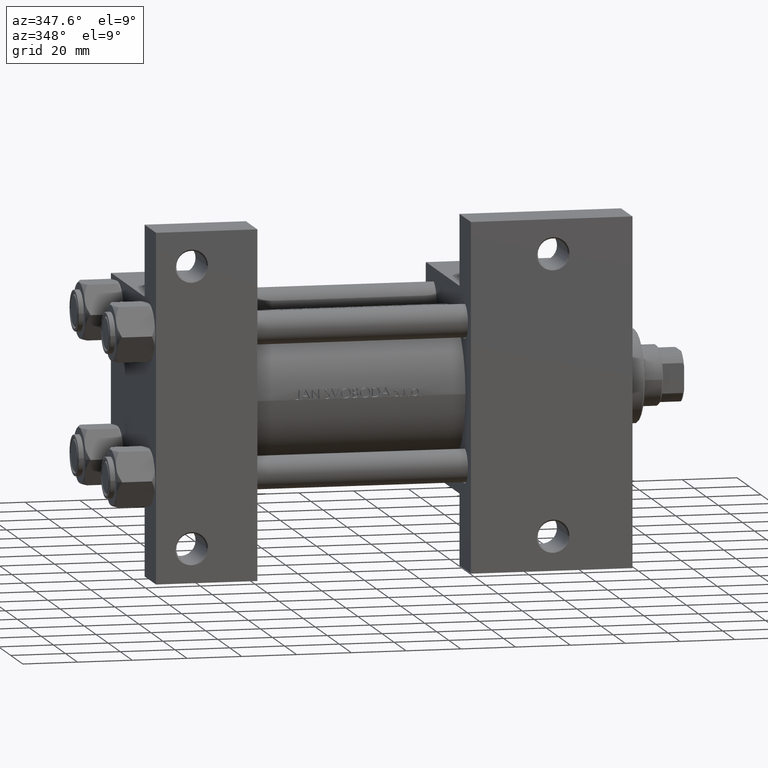
[diagram: clean part render]
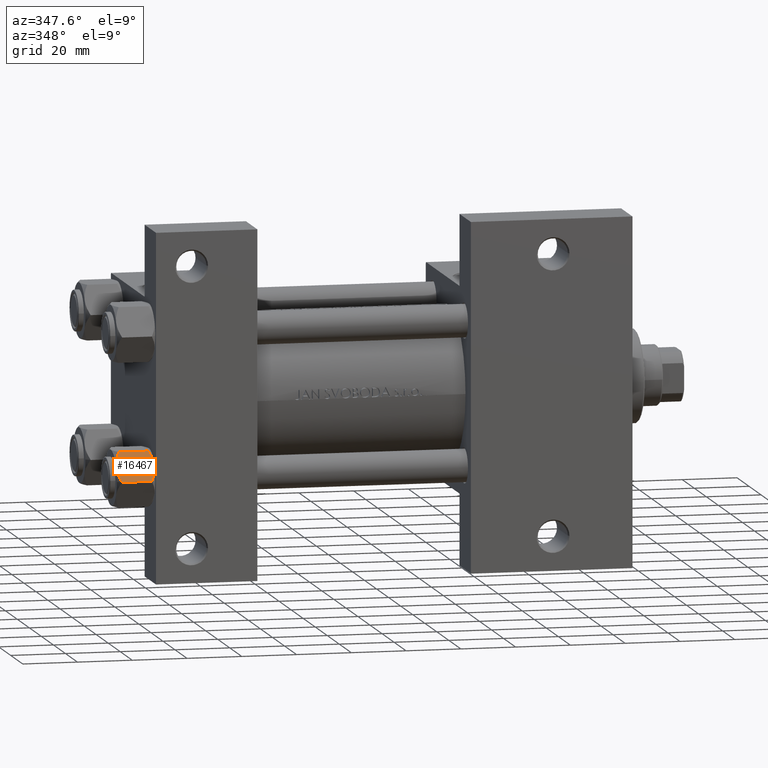
[diagram: same view with one face highlighted and labeled with its STEP entity id]
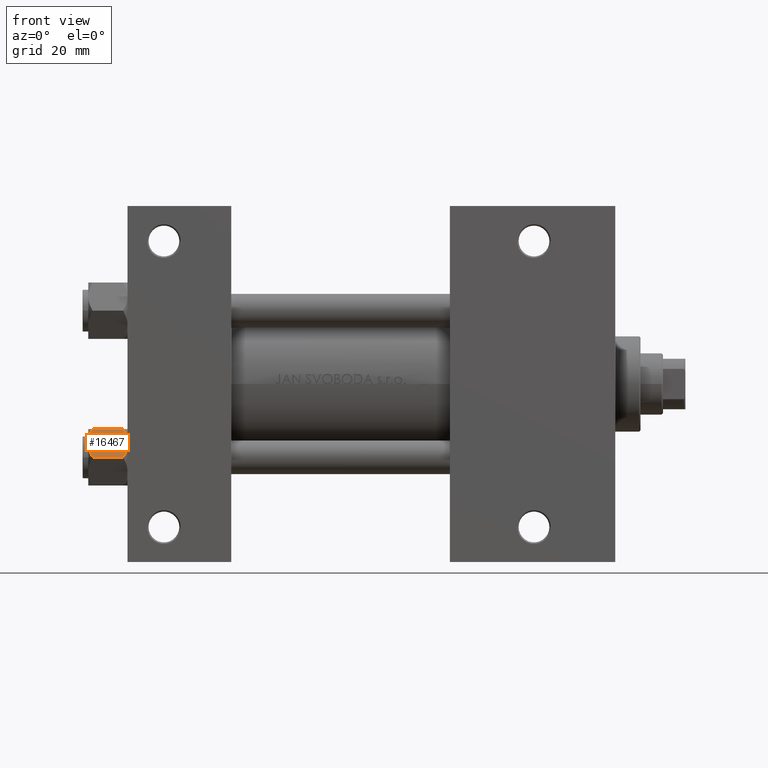
[diagram: same view with one face highlighted and labeled with its STEP entity id]
A machine part, auxiliary view. The second image highlights one B-rep face of the part: STEP entity #16467.
A second angle (front view) of the same face is appended — the face is thin or edge-on in the first view.
In plain terms, the highlighted planar face has unit normal (-0, 0.866, -0.5).
Its self-contained STEP definition (entity closure, byte-faithful):
#213 = CARTESIAN_POINT ( 'NONE',  ( 5.810000000000000497, 10.06321519197518022, -1.556784808024817890 ) ) ;
#1608 = LINE ( 'NONE', #30984, #35731 ) ;
#1749 = VERTEX_POINT ( 'NONE', #213 ) ;
#2144 = CARTESIAN_POINT ( 'NONE',  ( 8.715000000000003411, 5.031607595987588333, -14.00000000000000000 ) ) ;
#2214 = CARTESIAN_POINT ( 'NONE',  ( 10.69859855102501278, 1.595914123792261829, -0.7141438259524660603 ) ) ;
#3939 = CARTESIAN_POINT ( 'NONE',  ( 9.716999946243698005, 3.296092779912227044, -13.84547602999601779 ) ) ;
#4275 = LINE ( 'NONE', #31399, #42550 ) ;
#4361 = ORIENTED_EDGE ( 'NONE', *, *, #16908, .F. ) ;
#4637 = AXIS2_PLACEMENT_3D ( 'NONE', #27535, #12355, #43019 ) ;
#4955 = EDGE_CURVE ( 'NONE', #12208, #43726, #4275, .T. ) ;
#5641 = CARTESIAN_POINT ( 'NONE',  ( 6.731401448974989599, 8.467301068182914392, -13.28585617404753272 ) ) ;
#8739 = ORIENTED_EDGE ( 'NONE', *, *, #29451, .F. ) ;
#9775 = CARTESIAN_POINT ( 'NONE',  ( 11.62000000000000099, -1.795242522838921761E-15, -12.44321519197518455 ) ) ;
#12208 = VERTEX_POINT ( 'NONE', #9775 ) ;
#12355 = DIRECTION ( 'NONE',  ( -0.8660254037844387076, -0.4999999999999998335, 0.000000000000000000 ) ) ;
#12362 = ORIENTED_EDGE ( 'NONE', *, *, #4955, .F. ) ;
#15359 = CARTESIAN_POINT ( 'NONE',  ( 10.69662495661650503, 1.599332489581332339, -13.28854452935654962 ) ) ;
#15772 = CARTESIAN_POINT ( 'NONE',  ( 5.810000000000000497, 10.06321519197518022, -1.556784808024817890 ) ) ;
#16467 = ADVANCED_FACE ( 'NONE', ( #43264 ), #16576, .F. ) ;
#16576 = PLANE ( 'NONE',  #4637 ) ;
#16908 = EDGE_CURVE ( 'NONE', #44334, #1749, #23383, .T. ) ;
#18191 = EDGE_CURVE ( 'NONE', #19674, #1749, #1608, .T. ) ;
#18326 = B_SPLINE_CURVE_WITH_KNOTS ( 'NONE', 3,
 ( #31059, #23079, #3939, #15359, #38297, #34550 ),
 .UNSPECIFIED., .F., .F.,
 ( 4, 2, 4 ),
 ( 0.006022845781655591577, 0.009013049135303638493, 0.01200325248895168714 ),
 .UNSPECIFIED. ) ;
#18977 = ORIENTED_EDGE ( 'NONE', *, *, #18191, .T. ) ;
#19510 = CARTESIAN_POINT ( 'NONE',  ( 6.733375043383499126, 8.463882702393842550, -0.7114554706434507159 ) ) ;
#19625 = VERTEX_POINT ( 'NONE', #23382 ) ;
#19674 = VERTEX_POINT ( 'NONE', #23871 ) ;
#20497 = CARTESIAN_POINT ( 'NONE',  ( 8.715000000000003411, 5.031607595987588333, 0.000000000000000000 ) ) ;
#21031 = CARTESIAN_POINT ( 'NONE',  ( 6.265545725125283738, 9.274186850887380373, -12.89876091710046602 ) ) ;
#21107 = CARTESIAN_POINT ( 'NONE',  ( 11.16445427487472131, 0.7890283410877951820, -1.101239082899533317 ) ) ;
#21263 = CARTESIAN_POINT ( 'NONE',  ( 8.460569896449619876, 5.472293462311864864, -14.00000000000000355 ) ) ;
#23079 = CARTESIAN_POINT ( 'NONE',  ( 9.220295946303432189, 4.156409344131451356, -14.00000000000000178 ) ) ;
#23382 = CARTESIAN_POINT ( 'NONE',  ( 8.715000000000003411, 5.031607595987588333, -14.00000000000000000 ) ) ;
#23383 = B_SPLINE_CURVE_WITH_KNOTS ( 'NONE', 3,
 ( #20497, #42711, #35707, #19510, #27732, #15772 ),
 .UNSPECIFIED., .F., .F.,
 ( 4, 2, 4 ),
 ( 0.006022845781655587240, 0.009013049135303635023, 0.01200325248895168367 ),
 .UNSPECIFIED. ) ;
#23871 = CARTESIAN_POINT ( 'NONE',  ( 5.810000000000000497, 10.06321519197518022, -12.44321519197518278 ) ) ;
#23993 = DIRECTION ( 'NONE',  ( -0.000000000000000000, -0.000000000000000000, 1.000000000000000000 ) ) ;
#24113 = CARTESIAN_POINT ( 'NONE',  ( 11.62000000000000099, -1.607967606633101042E-15, -1.556784808024815669 ) ) ;
#24530 = CARTESIAN_POINT ( 'NONE',  ( 8.202333004087902779, 5.919572880271052995, -13.96005881939309212 ) ) ;
#27535 = CARTESIAN_POINT ( 'NONE',  ( 5.810000000000000497, 10.06321519197518022, -14.00000000000000000 ) ) ;
#27732 = CARTESIAN_POINT ( 'NONE',  ( 6.265018354709775750, 9.275100283241453525, -1.101766453314955152 ) ) ;
#28508 = CARTESIAN_POINT ( 'NONE',  ( 7.455303369716809847, 7.213466161761385997, -13.69973261901326289 ) ) ;
#29451 = EDGE_CURVE ( 'NONE', #19625, #12208, #18326, .T. ) ;
#30984 = CARTESIAN_POINT ( 'NONE',  ( 5.810000000000000497, 10.06321519197518022, -14.00000000000000000 ) ) ;
#31059 = CARTESIAN_POINT ( 'NONE',  ( 8.715000000000003411, 5.031607595987588333, -14.00000000000000000 ) ) ;
#31399 = CARTESIAN_POINT ( 'NONE',  ( 11.62000000000000099, -1.813166800014576593E-15, -14.00000000000000000 ) ) ;
#31851 = CARTESIAN_POINT ( 'NONE',  ( 8.715000000000003411, 5.031607595987588333, 0.000000000000000000 ) ) ;
#33489 = CARTESIAN_POINT ( 'NONE',  ( 8.715000000000003411, 5.031607595987588333, 0.000000000000000000 ) ) ;
#34341 = CARTESIAN_POINT ( 'NONE',  ( 11.62000000000000099, -1.607967606633101042E-15, -1.556784808024815669 ) ) ;
#34550 = CARTESIAN_POINT ( 'NONE',  ( 11.62000000000000099, -1.795242522838921761E-15, -12.44321519197518455 ) ) ;
#34642 = DIRECTION ( 'NONE',  ( -0.000000000000000000, -0.000000000000000000, 1.000000000000000000 ) ) ;
#35707 = CARTESIAN_POINT ( 'NONE',  ( 7.713000053756308816, 6.767122412062953174, -0.1545239700039844066 ) ) ;
#35731 = VECTOR ( 'NONE', #23993, 1000.000000000000000 ) ;
#36075 = CARTESIAN_POINT ( 'NONE',  ( 9.729165168613654657, 3.275021996682081493, -0.1903979688073423326 ) ) ;
#36555 = CARTESIAN_POINT ( 'NONE',  ( 9.974696630283190757, 2.849749030213790224, -0.3002673809867378307 ) ) ;
#38297 = CARTESIAN_POINT ( 'NONE',  ( 11.16498164529022574, 0.7881149087337280257, -12.89823354668504862 ) ) ;
#39993 = CARTESIAN_POINT ( 'NONE',  ( 5.810000000000000497, 10.06321519197518022, -12.44321519197518278 ) ) ;
#40305 = B_SPLINE_CURVE_WITH_KNOTS ( 'NONE', 3,
 ( #39993, #21031, #5641, #28508, #48445, #24530, #21263, #2144 ),
 .UNSPECIFIED., .F., .F.,
 ( 4, 2, 2, 4 ),
 ( 2.544312114902182352E-07, 0.003011550106433540791, 0.004517197944044566184, 0.006022845781655591577 ),
 .UNSPECIFIED. ) ;
#40311 = CARTESIAN_POINT ( 'NONE',  ( 9.227666995912102266, 4.143642311704122783, -0.03994118060690848154 ) ) ;
#40593 = EDGE_CURVE ( 'NONE', #19674, #19625, #40305, .T. ) ;
#40616 = B_SPLINE_CURVE_WITH_KNOTS ( 'NONE', 3,
 ( #24113, #21107, #2214, #36555, #36075, #40311, #43814, #31851 ),
 .UNSPECIFIED., .F., .F.,
 ( 4, 2, 2, 4 ),
 ( 2.544312114904956385E-07, 0.003011550106433539924, 0.004517197944044563582, 0.006022845781655587240 ),
 .UNSPECIFIED. ) ;
#42550 = VECTOR ( 'NONE', #34642, 1000.000000000000000 ) ;
#42711 = CARTESIAN_POINT ( 'NONE',  ( 8.209704053696574633, 5.906805847843726198, 1.265467223197924312E-15 ) ) ;
#43019 = DIRECTION ( 'NONE',  ( 0.4999999999999998335, -0.8660254037844387076, 0.000000000000000000 ) ) ;
#43264 = FACE_OUTER_BOUND ( 'NONE', #43650, .T. ) ;
#43650 = EDGE_LOOP ( 'NONE', ( #47491, #18977, #4361, #47082, #12362, #8739 ) ) ;
#43726 = VERTEX_POINT ( 'NONE', #34341 ) ;
#43814 = CARTESIAN_POINT ( 'NONE',  ( 8.969430103550381617, 4.590921729663312689, 1.314595134138673732E-15 ) ) ;
#44334 = VERTEX_POINT ( 'NONE', #33489 ) ;
#45351 = EDGE_CURVE ( 'NONE', #43726, #44334, #40616, .T. ) ;
#47082 = ORIENTED_EDGE ( 'NONE', *, *, #45351, .F. ) ;
#47491 = ORIENTED_EDGE ( 'NONE', *, *, #40593, .F. ) ;
#48445 = CARTESIAN_POINT ( 'NONE',  ( 7.700834831386346835, 6.788193195293095172, -13.80960203119265728 ) ) ;